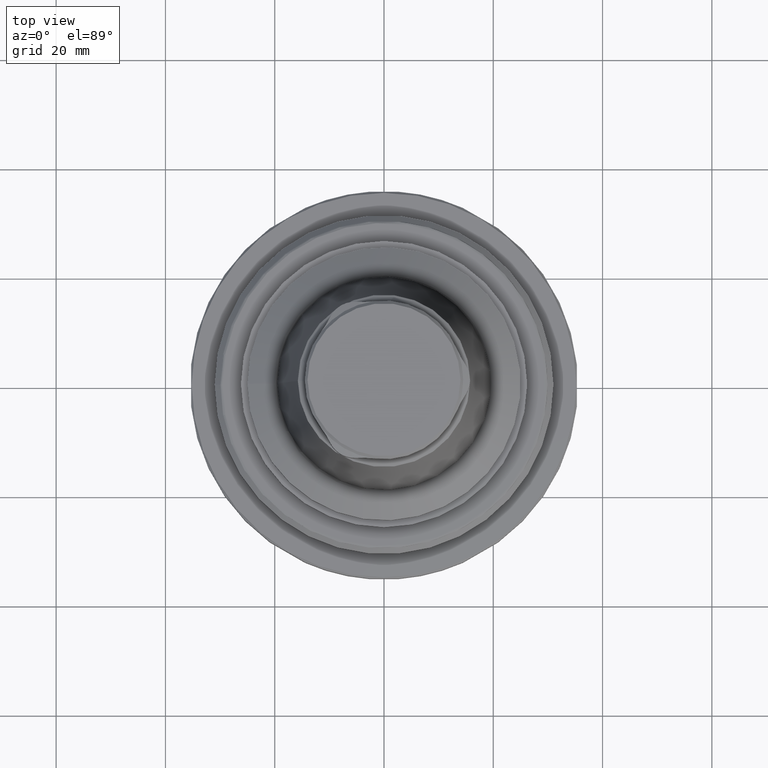
[diagram: clean part render]
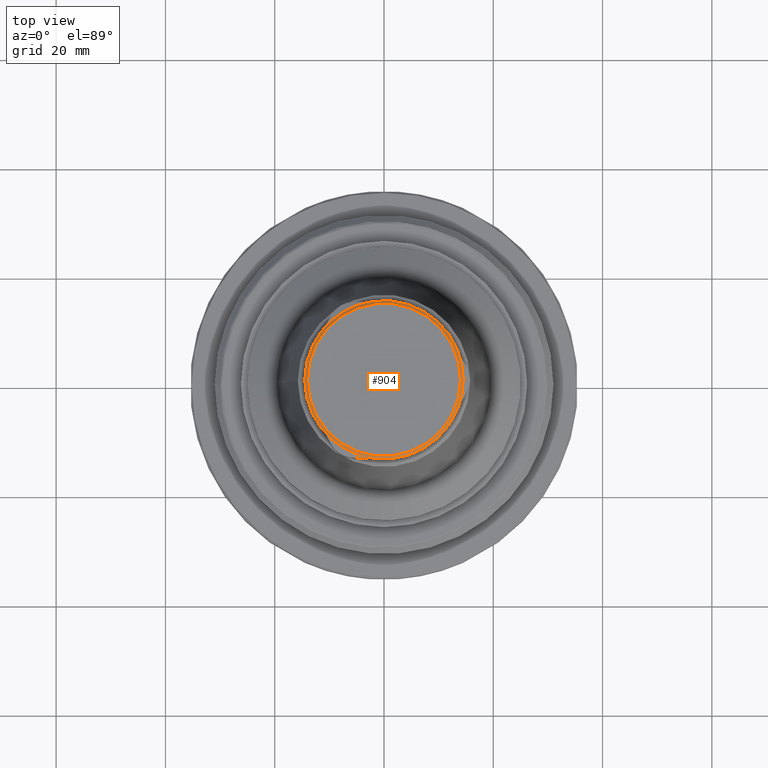
[diagram: same view with one face highlighted and labeled with its STEP entity id]
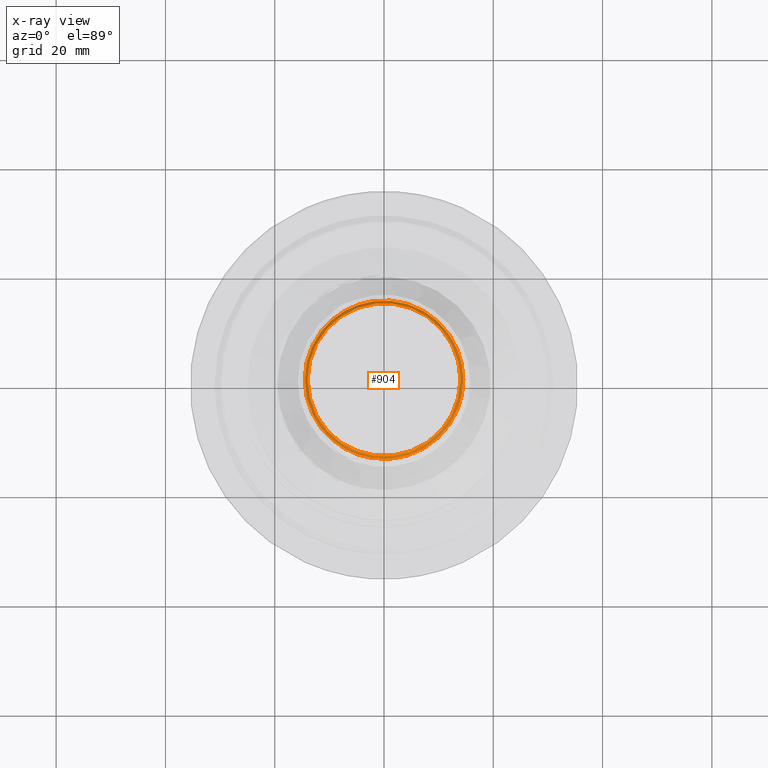
[diagram: x-ray of the same camera — body ghosted, the highlighted face saturated]
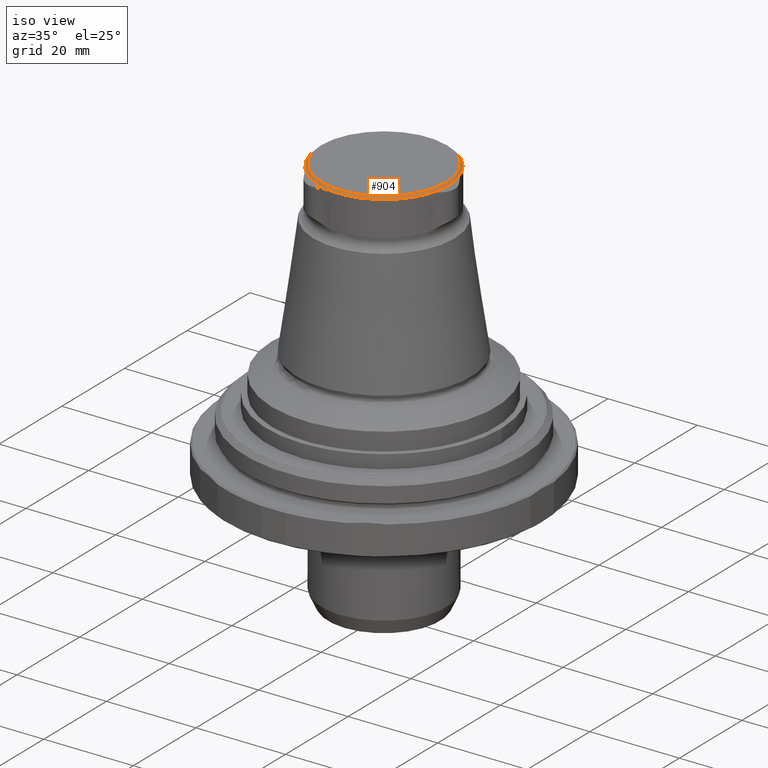
[diagram: same view with one face highlighted and labeled with its STEP entity id]
A machine part, top view. The second image highlights one B-rep face of the part: STEP entity #904.
The next image is the same camera in x-ray: the body ghosted, the highlighted face saturated — about 0% of this face is hidden behind the body in this view.
A second angle (iso view) of the same face is appended — the face is thin or edge-on in the first view.
In plain terms, the highlighted conical surface has half-angle 45 deg.
Its self-contained STEP definition (entity closure, byte-faithful):
#84=CONICAL_SURFACE('',#991,14.5,0.785398163397452);
#119=CIRCLE('',#986,14.);
#120=CIRCLE('',#988,14.5);
#121=CIRCLE('',#990,14.5);
#122=CIRCLE('',#992,14.5);
#123=CIRCLE('',#993,14.5);
#124=CIRCLE('',#994,14.5);
#125=CIRCLE('',#995,14.5);
#188=ORIENTED_EDGE('',*,*,#426,.T.);
#189=ORIENTED_EDGE('',*,*,#435,.F.);
#190=ORIENTED_EDGE('',*,*,#436,.F.);
#191=ORIENTED_EDGE('',*,*,#427,.F.);
#192=ORIENTED_EDGE('',*,*,#437,.F.);
#193=ORIENTED_EDGE('',*,*,#431,.F.);
#194=ORIENTED_EDGE('',*,*,#438,.F.);
#426=EDGE_CURVE('',#551,#551,#119,.T.);
#427=EDGE_CURVE('',#552,#553,#120,.T.);
#431=EDGE_CURVE('',#556,#557,#121,.T.);
#435=EDGE_CURVE('',#560,#561,#122,.T.);
#436=EDGE_CURVE('',#553,#560,#123,.T.);
#437=EDGE_CURVE('',#557,#552,#124,.T.);
#438=EDGE_CURVE('',#561,#556,#125,.T.);
#551=VERTEX_POINT('',#1426);
#552=VERTEX_POINT('',#1429);
#553=VERTEX_POINT('',#1430);
#556=VERTEX_POINT('',#1448);
#557=VERTEX_POINT('',#1449);
#560=VERTEX_POINT('',#1467);
#561=VERTEX_POINT('',#1468);
#690=EDGE_LOOP('',(#188));
#691=EDGE_LOOP('',(#189,#190,#191,#192,#193,#194));
#786=FACE_BOUND('',#690,.T.);
#787=FACE_BOUND('',#691,.T.);
#904=ADVANCED_FACE('',(#786,#787),#84,.T.);
#986=AXIS2_PLACEMENT_3D('',#1425,#1119,#1120);
#988=AXIS2_PLACEMENT_3D('',#1428,#1123,#1124);
#990=AXIS2_PLACEMENT_3D('',#1447,#1127,#1128);
#991=AXIS2_PLACEMENT_3D('',#1465,#1129,#1130);
#992=AXIS2_PLACEMENT_3D('',#1466,#1131,#1132);
#993=AXIS2_PLACEMENT_3D('',#1469,#1133,#1134);
#994=AXIS2_PLACEMENT_3D('',#1470,#1135,#1136);
#995=AXIS2_PLACEMENT_3D('',#1471,#1137,#1138);
#1119=DIRECTION('',(-4.38328612912168E-16,-8.51929322185263E-24,-1.));
#1120=DIRECTION('',(-1.,9.77164313006873E-16,4.38328610599545E-16));
#1123=DIRECTION('',(-4.38328612912168E-16,-8.51929322185263E-24,-1.));
#1124=DIRECTION('',(-1.,9.77164313006873E-16,4.38328610599545E-16));
#1127=DIRECTION('',(-4.38328612912168E-16,-8.51929322185263E-24,-1.));
#1128=DIRECTION('',(-1.,9.77164313006873E-16,4.38328610599545E-16));
#1129=DIRECTION('',(-4.38328612912168E-16,-8.51929322185263E-24,-1.));
#1130=DIRECTION('',(-1.,9.77164313006873E-16,4.38328610599545E-16));
#1131=DIRECTION('',(-4.38328612912168E-16,-8.51929322185263E-24,-1.));
#1132=DIRECTION('',(-1.,9.77164313006873E-16,4.38328610599545E-16));
#1133=DIRECTION('',(-4.38328612912168E-16,-8.51929322185263E-24,-1.));
#1134=DIRECTION('',(-1.,9.77164313006873E-16,4.38328610599545E-16));
#1135=DIRECTION('',(-4.38328612912168E-16,-8.51929322185263E-24,-1.));
#1136=DIRECTION('',(-1.,9.77164313006873E-16,4.38328610599545E-16));
#1137=DIRECTION('',(-4.38328612912168E-16,-8.51929322185263E-24,-1.));
#1138=DIRECTION('',(-1.,9.77164313006873E-16,4.38328610599545E-16));
#1425=CARTESIAN_POINT('',(-6.36553171097064E-14,-9.81645346997689E-14,55.));
#1426=CARTESIAN_POINT('',(-14.0000000000001,-8.44842343176727E-14,55.));
#1428=CARTESIAN_POINT('',(-6.38744814161624E-14,-9.81645347040286E-14,54.5));
#1429=CARTESIAN_POINT('',(-2.01217892083197,-14.3597052891257,54.5));
#1430=CARTESIAN_POINT('',(-11.4297801108245,-8.92245070696412,54.5));
#1447=CARTESIAN_POINT('',(-6.38744814161624E-14,-9.81645347040286E-14,54.5));
#1448=CARTESIAN_POINT('',(13.4419590316581,5.4372545821627,54.499999999999));
#1449=CARTESIAN_POINT('',(13.4419590316585,-5.43725458216212,54.499999999999));
#1465=CARTESIAN_POINT('',(-6.38744814161624E-14,-9.81645347040286E-14,54.5));
#1466=CARTESIAN_POINT('',(-6.38744814161624E-14,-9.81645347040286E-14,54.5));
#1467=CARTESIAN_POINT('',(-11.4297801108242,8.92245070696371,54.5));
#1468=CARTESIAN_POINT('',(-2.01217892083196,14.3597052891265,54.4999999999997));
#1469=CARTESIAN_POINT('',(-6.38744814161624E-14,-9.81645347040286E-14,54.5));
#1470=CARTESIAN_POINT('',(-6.38744814161624E-14,-9.81645347040286E-14,54.5));
#1471=CARTESIAN_POINT('',(-6.38744814161624E-14,-9.81645347040286E-14,54.5));